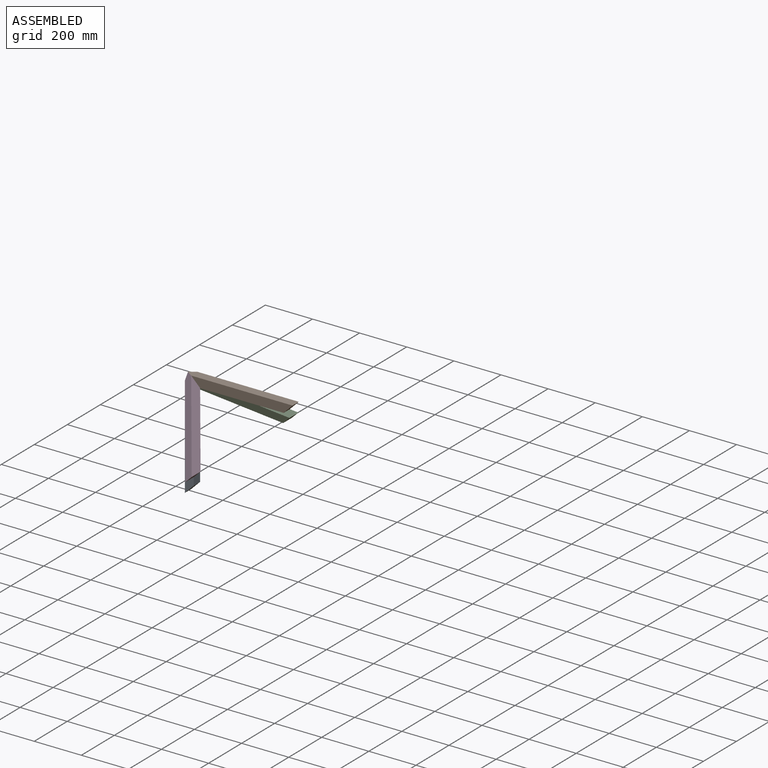
[diagram: assembled view]
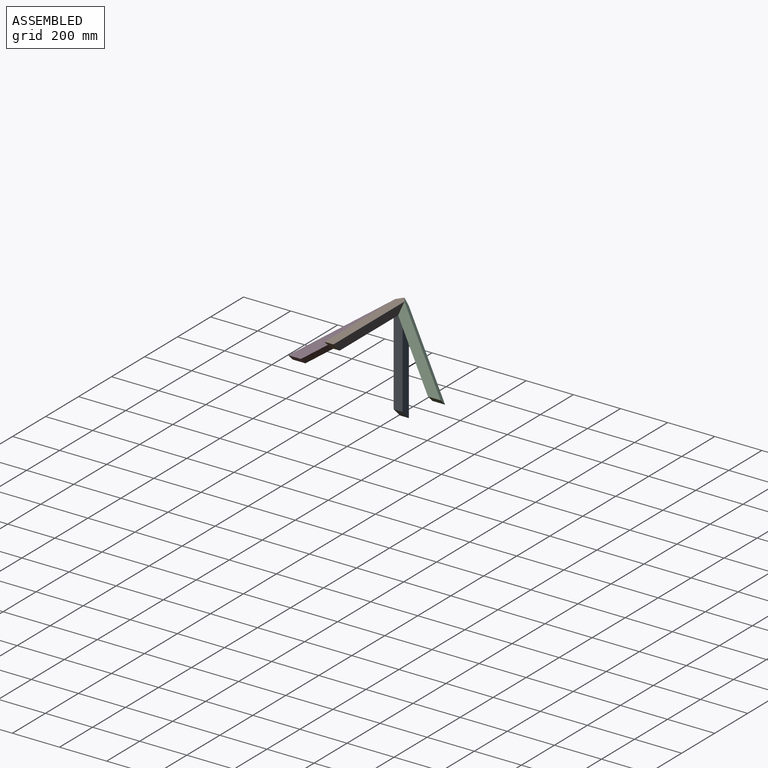
[diagram: assembled view, second angle]
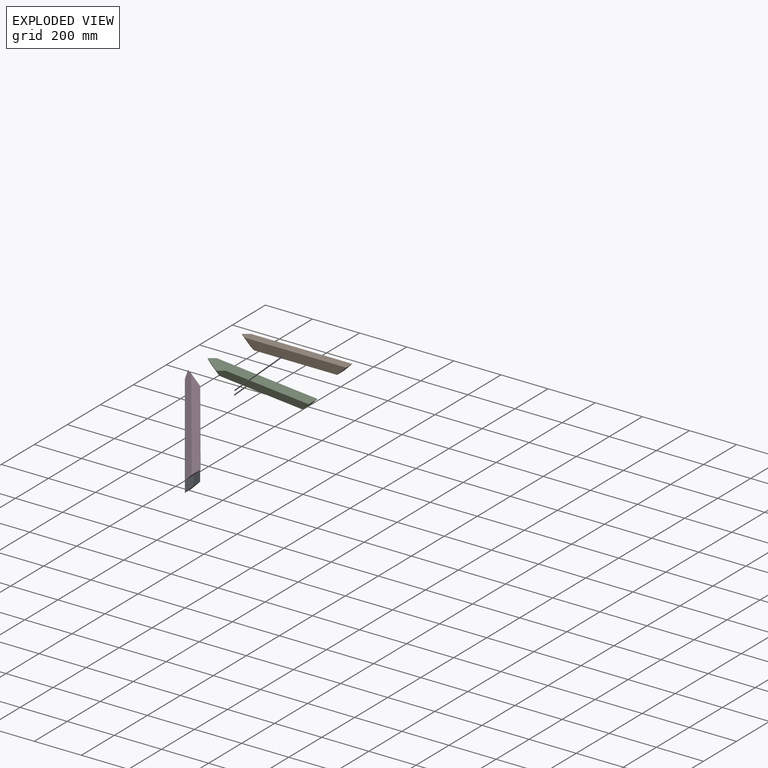
[diagram: exploded view]
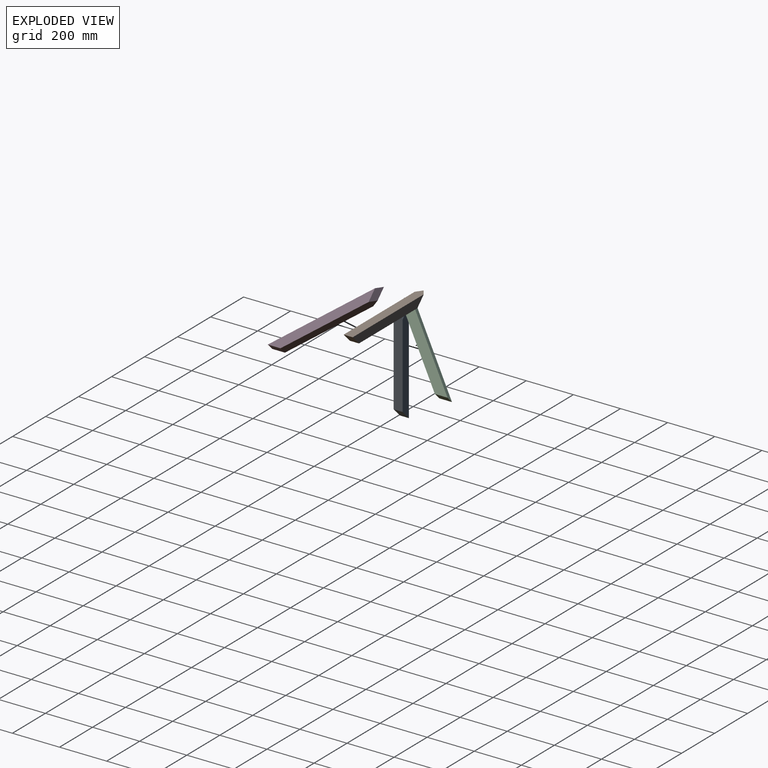
[diagram: exploded view, second angle]
ASSEMBLY  parts=4 mates=3
PART A: 7 faces, bbox 457.2x38.1x38.1 mm
  f0: plane 430.26x38.1mm, normal (0,1,0), area 14941.3mm2, adj f2,f3,f4,f6
  f1: plane 430.26x38.1mm, normal (0,-1,0), area 14941.3mm2, adj f2,f3,f4,f5
  f2: plane 457.2x38.1mm, normal (0,0,1), area 16906.1mm2, adj f0,f1,f4,f5,f6
  f3: plane 381x38.1mm, normal (0,0,-1), area 14002.9mm2, adj f0,f1,f4,f5,f6
  f4: plane 38.1x38.1mm, normal (0.71,0,-0.71), area 2052.9mm2, adj f0,f1,f2,f3
  f5: plane 65.04x38.1mm, normal (-0.5,-0.71,-0.5), area 1451.6mm2, adj f1,f2,f3,f6
  f6: plane 65.04x38.1mm, normal (-0.5,0.71,-0.5), area 1451.6mm2, adj f0,f2,f3,f5
PART B: same geometry as A
PART C: same geometry as A
PART D: same geometry as A
PLACE A rot(axis=(0.71,0,-0.71),180deg) t=(94.45,-377.31,-371.14)mm
PLACE B t=(234.15,-377.31,-231.44)mm
PLACE C rot(axis=(-0.71,0,0.71),90deg) t=(164.3,-278.53,-301.29)mm
PLACE D rot(axis=(0.71,0,-0.71),90deg) t=(164.3,-476.09,-301.29)mm
MATE fastened C.f6 <-> A.f5  axis (-0.5,-0.71,-0.5) through (56.35,-377.31,-193.34)mm
MATE fastened A.f6 <-> D.f5  axis (0.5,-0.71,0.5) through (56.35,-377.31,-193.34)mm
MATE fastened B.f5 <-> D.f6  axis (-0.5,-0.71,-0.5) through (56.35,-377.31,-193.34)mm
